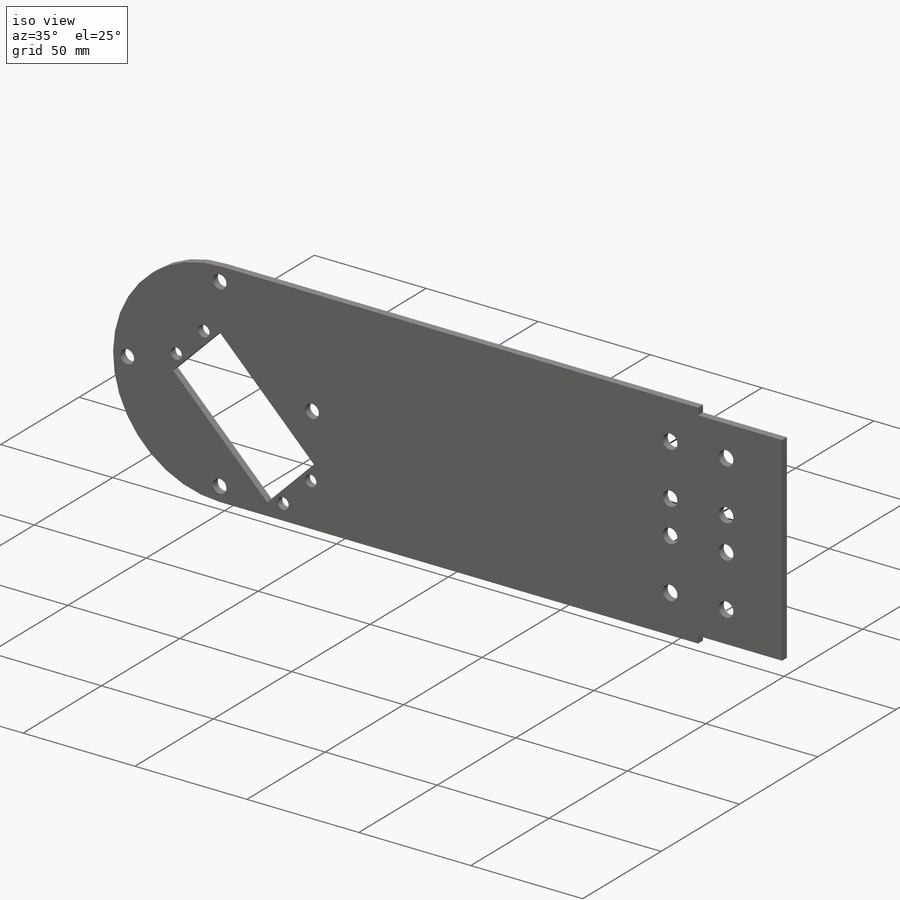
[diagram: iso view]
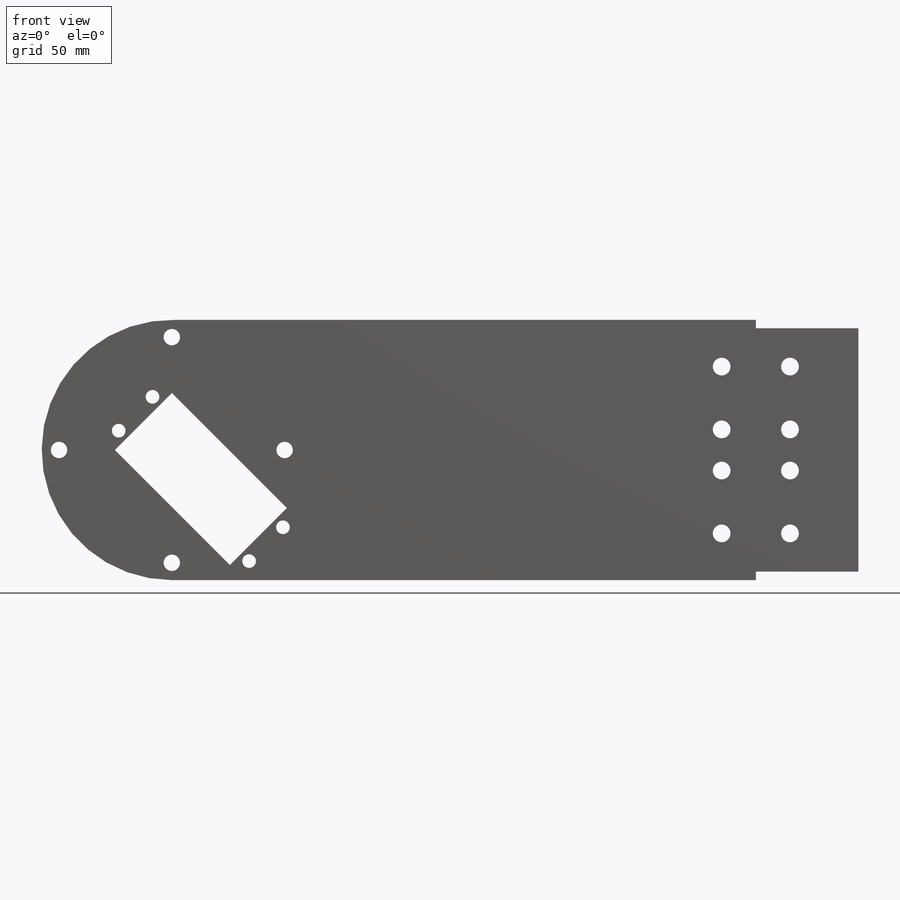
[diagram: front view]
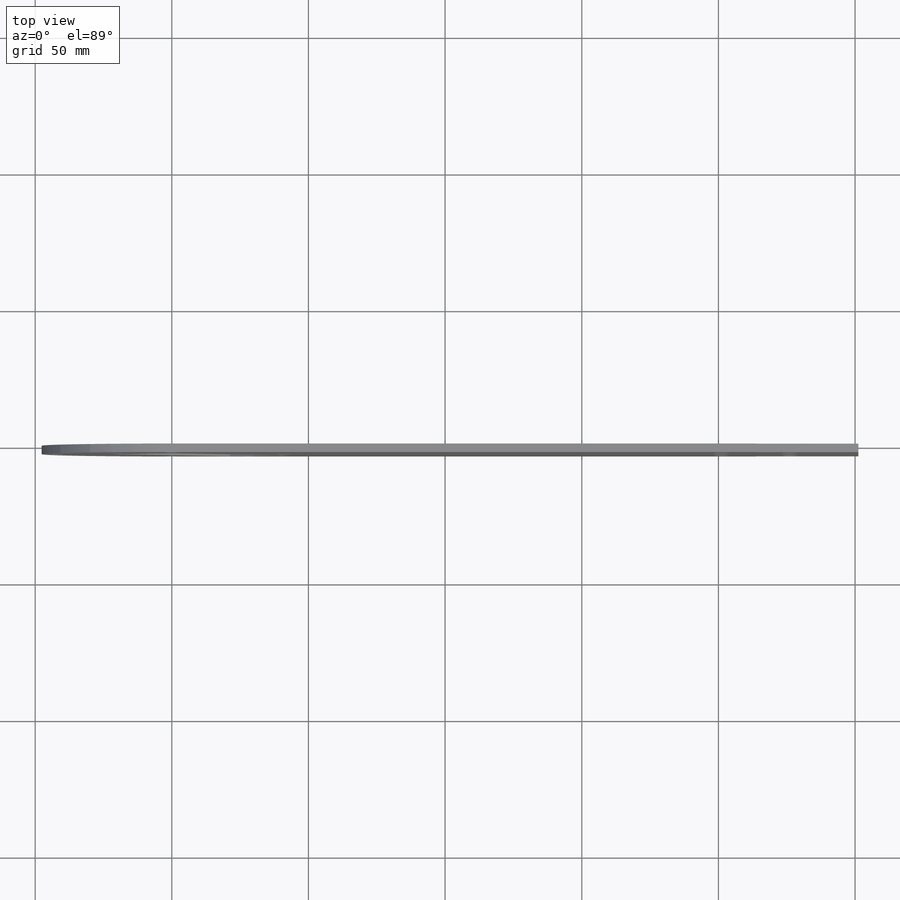
[diagram: top view]
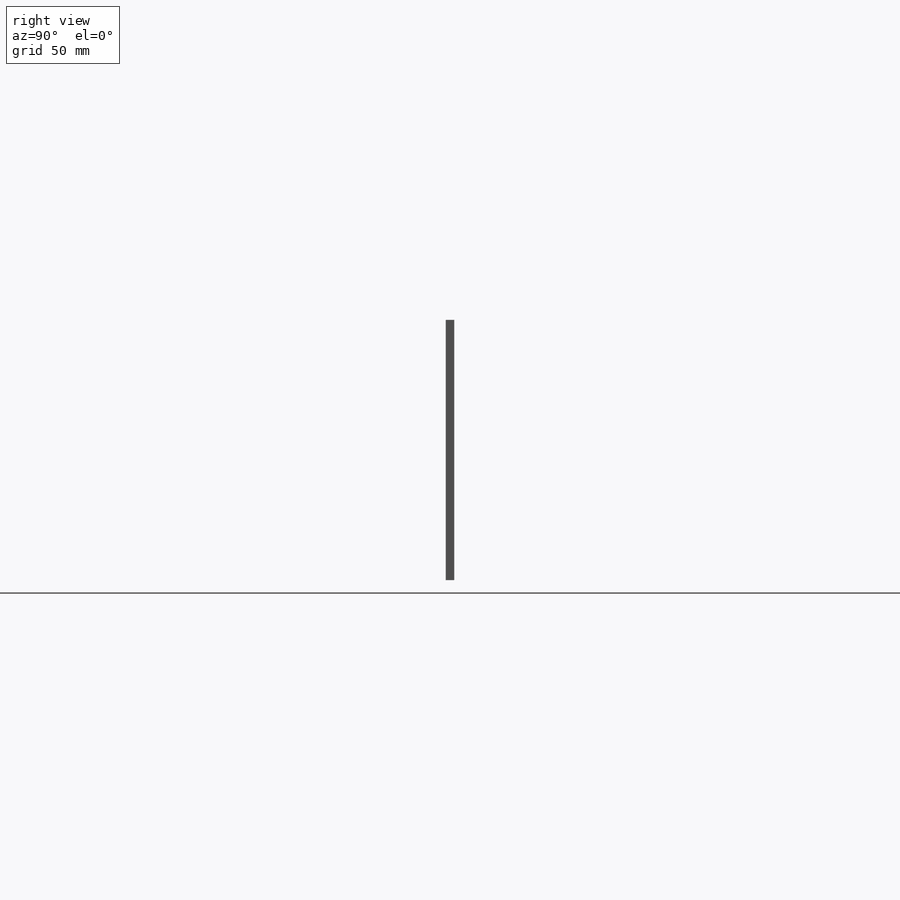
[diagram: right view]
SOLIDWORKS PART (.sldprt)
format: sldprt  version: not decoded by parser v0  size: 515,584 bytes
history: native  units: mm
features: sketch x4, cut_extrude x3, material x1, extrude x1, mirror x1 (+13 scaffold rows collapsed)
feature tree (23):
  scaffold x13  (default folders/planes/origin — collapsed)
  material  "Teak"
  sketch  "Sketch1"  dims[c1.D1=59.85mm c1.D2=47.625mm c1.D3=6.0mm c2.D2=47.625mm c2.D5=82.55mm c2.D6=0.0mm c2.D7=300.0mm c2.D8=75.0mm c2.D9=100.0mm c3.D7=100.0mm c3.D8=250.0mm c3.D9=75.0mm c3.D4=4.0]
  extrude  "Boss-Extrude1"  Depth=3.1mm
  sketch  "Sketch2"  dims[c1.D4=5.0mm c1.D3=~4.356125mm c2.D4=~4.356125mm c2.D6=5.0mm c2.D11=5.0mm c2.D1=20.0mm c2.D2=20.5mm c2.D3=40.7mm c2.D5=10.0mm c3.D6=10.0mm c3.D5=10.0mm c4.D6=49.0mm c4.D7=10.0mm c4.D8=50.0mm c4.D1=40.7mm c4.D2=20.5mm c4.D3=10.0mm c4.D4=15.0mm c4.D5=50.0mm c5.D1=40.7mm c5.D2=20.5mm c5.D3=10.0mm c5.D4=15.0mm c6.D1=0.0mm c6.D2=29.5mm c6.D3=59.5mm c6.D4=14.75mm c6.D5=15.0mm c6.D6=250.0mm c7.D5=0.0mm c7.D7=17.5mm c7.D8=67.5mm c7.D9=~14.495689mm c8.D9=90.0deg c8.D10=~14.495689mm c9.D10=90.0deg]
  cut_extrude  "Cut-Extrude1"  [1 undecoded]
  sketch  "Sketch3"  dims[c1.D1=75.0mm c1.D2=37.5mm c1.D3=3.1mm c2.D1=0.0mm]
  cut_extrude  "Cut-Extrude2"  [1 undecoded]
  mirror  "Mirror1"
  sketch  "Sketch7"  dims[c1.D1=6.5mm c1.D2=6.5mm c1.D3=14.0mm c1.D4=37.0mm c1.D5=23.0mm c1.D6=25.0mm c1.D7=25.0mm c2.D5=2.0]
  cut_extrude  "Cut-Extrude5"  [1 undecoded]
decode coverage: 5 of 9 modeling features carry decoded parameters
note: ~ marks probable driven/reference dimensions
note: 3 parameter values undecoded
summary: no parameter record found for 3 features
note: suppression state not decoded; provenance and decode notes live in map.json
